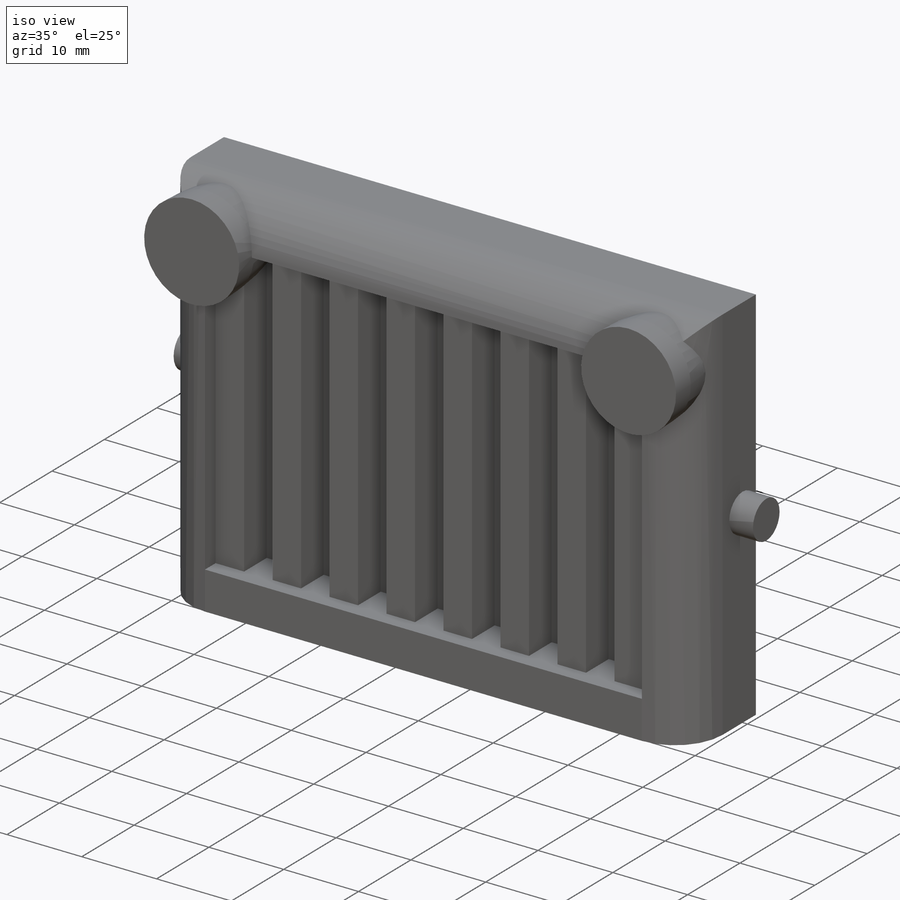
[diagram: iso view]
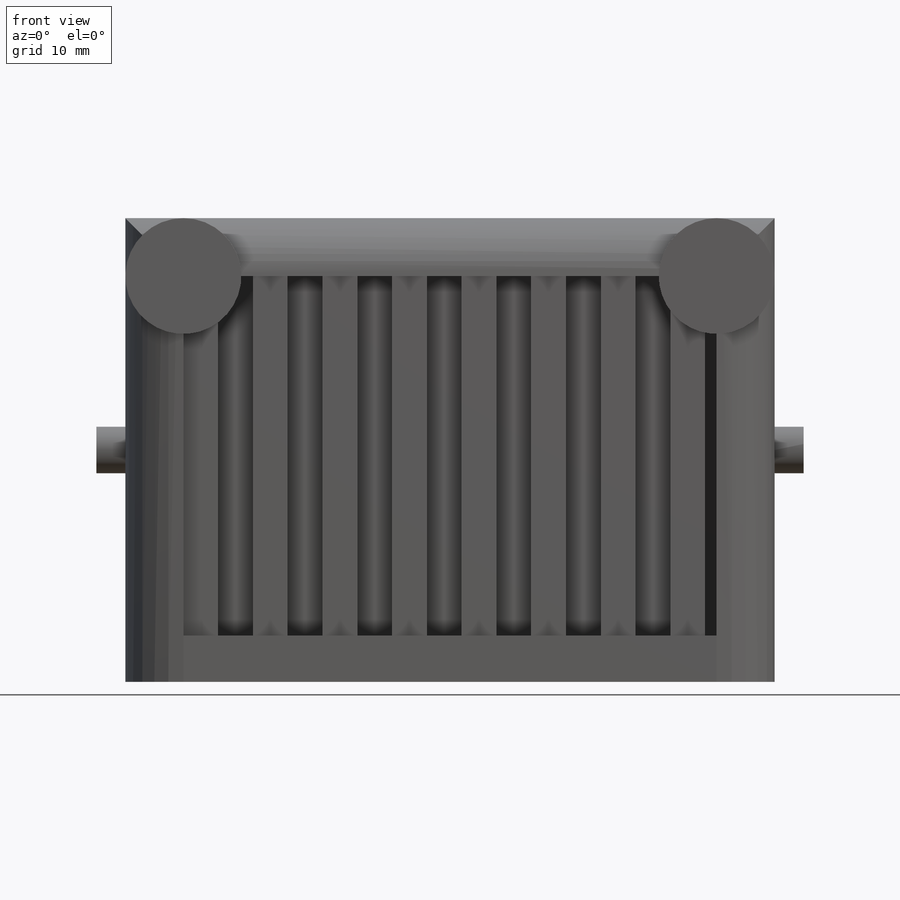
[diagram: front view]
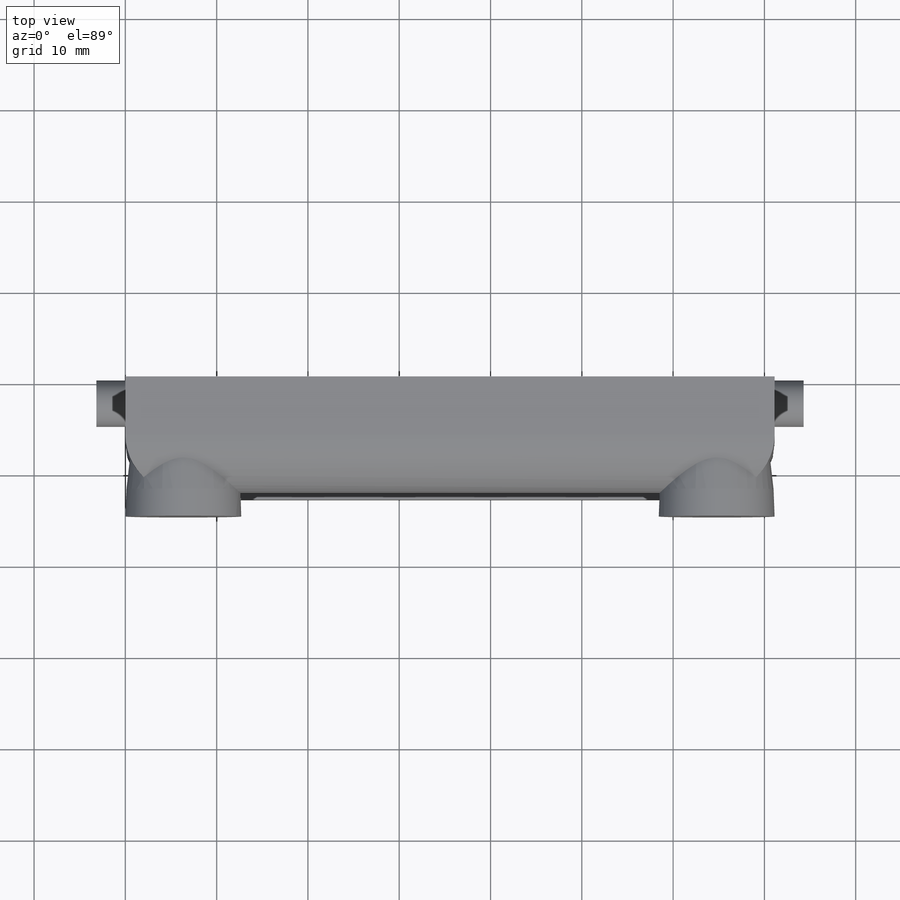
[diagram: top view]
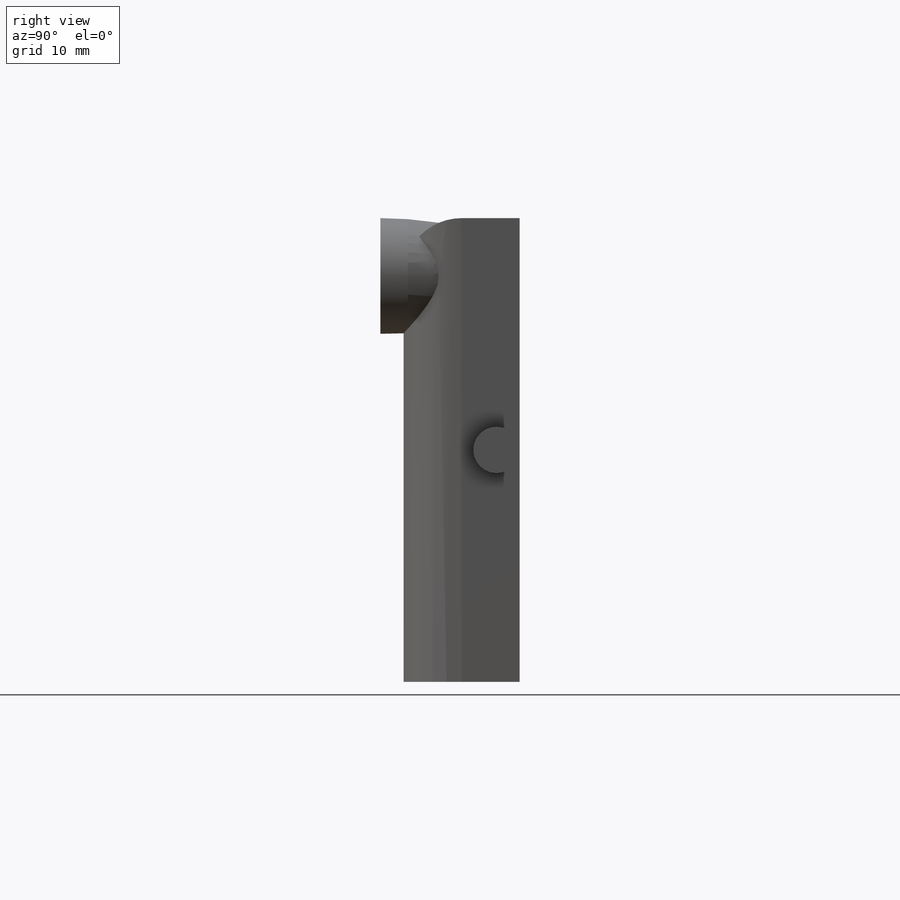
[diagram: right view]
SOLIDWORKS PART (.sldprt)
format: sldprt  version: not decoded by parser v0  size: 317,952 bytes
history: native  units: mm
features: sketch x7, extrude x3, cut_extrude x3, material x1, fillet x1, pattern_linear x1, revolve x1, plane x1, mirror x1 (+13 scaffold rows collapsed)
feature tree (32):
  scaffold x13  (default folders/planes/origin — collapsed)
  material  "Material <not specified>"
  sketch  "Sketch2"  dims[D1=71.12mm D2=50.8mm]
  extrude  "Boss-Extrude1"  Depth=12.7mm
  fillet  "Fillet2"  Radius=6.35mm
  sketch  "Sketch3"  dims[D1=5.08mm]
  cut_extrude  "Cut-Extrude1"  Depth=6.35mm
  sketch  "Sketch4"  dims[D1=3.81mm]
  extrude  "Boss-Extrude2"  Depth=4.318mm
  pattern_linear  "LPattern1"  Count1=8 Count2=1 Spacing1=7.62mm Spacing2=2.54mm
  sketch  "Sketch7"  dims[c1.D1=3.175mm c1.D2=15.24mm c1.D3=6.35mm c2.D1=6.35mm c2.D2=0.0mm]
  revolve  "Revolve1"  Angle=360deg
  sketch  "Sketch9"  dims[D1=12.7mm D2=3.175mm D3=68.58mm D4=1.27mm]
  cut_extrude  "Cut-Extrude3"  Depth=5.08mm
  plane  "Plane1"  Offset=35.56mm
  sketch  "Sketch10"  dims[D1=5.08mm D2=2.54mm D3=25.4mm]
  extrude  "Boss-Extrude3"  Depth=3.175mm
  mirror  "Mirror1"
  sketch  "Sketch8"
  cut_extrude  "Cut-Extrude2"  Depth=83.82mm
decode coverage: 15 of 17 modeling features carry decoded parameters
note: suppression state not decoded; provenance and decode notes live in map.json
